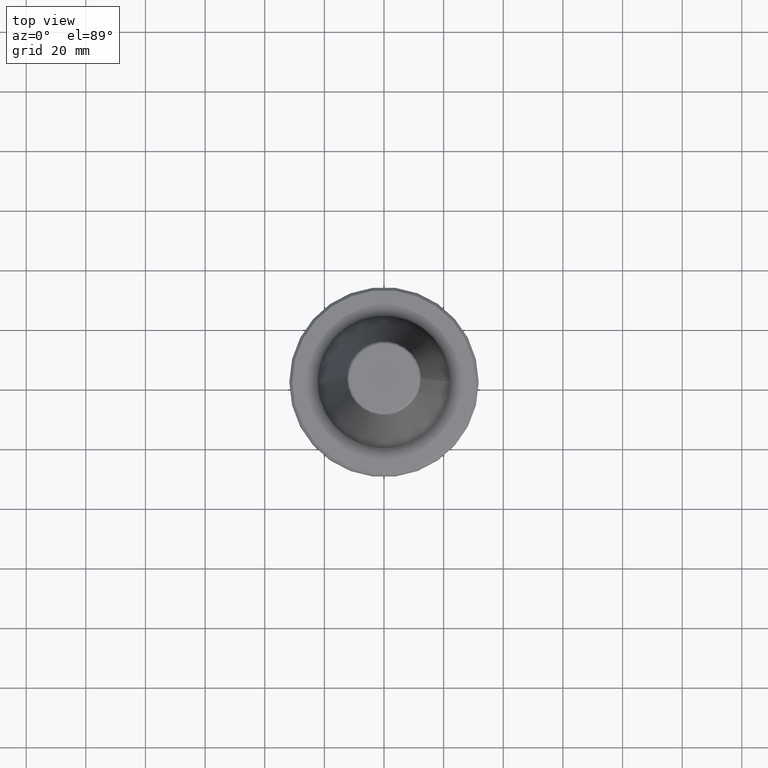
[diagram: clean part render]
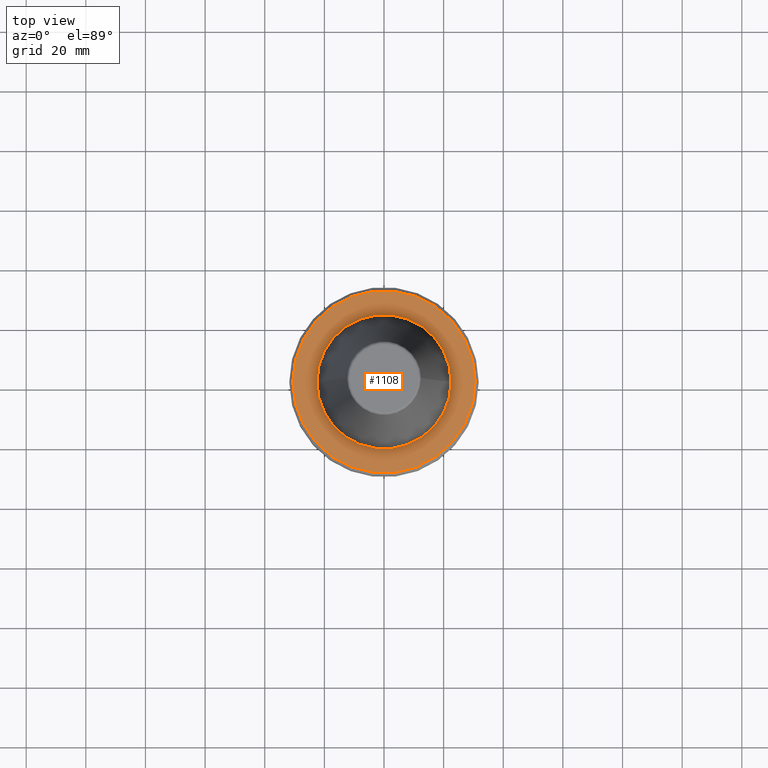
[diagram: same view with one face highlighted and labeled with its STEP entity id]
A machine part, top view. The second image highlights one B-rep face of the part: STEP entity #1108.
In plain terms, the highlighted planar face has unit normal (0, -0, 1).
Its self-contained STEP definition (entity closure, byte-faithful):
#16 = DIRECTION ( 'NONE',  ( 1.000000000000000000, 0.0000000000000000000, 0.0000000000000000000 ) ) ;
#18 = DIRECTION ( 'NONE',  ( 1.000000000000000000, 0.0000000000000000000, 0.0000000000000000000 ) ) ;
#67 = AXIS2_PLACEMENT_3D ( 'NONE', #457, #248, #242 ) ;
#108 = AXIS2_PLACEMENT_3D ( 'NONE', #875, #1064, #974 ) ;
#123 = CARTESIAN_POINT ( 'NONE',  ( 30.58431457505076200, 0.0000000000000000000, -3.199999999999994400 ) ) ;
#182 = CARTESIAN_POINT ( 'NONE',  ( 0.0000000000000000000, 0.0000000000000000000, -3.199999999999994400 ) ) ;
#193 = EDGE_LOOP ( 'NONE', ( #276, #1001 ) ) ;
#197 = FACE_BOUND ( 'NONE', #1008, .T. ) ;
#238 = VERTEX_POINT ( 'NONE', #1037 ) ;
#242 = DIRECTION ( 'NONE',  ( 1.000000000000000000, 0.0000000000000000000, 0.0000000000000000000 ) ) ;
#248 = DIRECTION ( 'NONE',  ( -0.0000000000000000000, -0.0000000000000000000, 1.000000000000000000 ) ) ;
#271 = CIRCLE ( 'NONE', #738, 30.58431457505076200 ) ;
#276 = ORIENTED_EDGE ( 'NONE', *, *, #1069, .T. ) ;
#292 = DIRECTION ( 'NONE',  ( 1.000000000000000000, 0.0000000000000000000, 0.0000000000000000000 ) ) ;
#293 = EDGE_CURVE ( 'NONE', #478, #321, #1135, .T. ) ;
#321 = VERTEX_POINT ( 'NONE', #123 ) ;
#410 = DIRECTION ( 'NONE',  ( -0.0000000000000000000, -0.0000000000000000000, 1.000000000000000000 ) ) ;
#425 = VERTEX_POINT ( 'NONE', #1027 ) ;
#457 = CARTESIAN_POINT ( 'NONE',  ( 0.0000000000000000000, 0.0000000000000000000, -3.199999999999994400 ) ) ;
#474 = CIRCLE ( 'NONE', #67, 22.50000000000000000 ) ;
#478 = VERTEX_POINT ( 'NONE', #669 ) ;
#623 = DIRECTION ( 'NONE',  ( -0.0000000000000000000, -0.0000000000000000000, 1.000000000000000000 ) ) ;
#669 = CARTESIAN_POINT ( 'NONE',  ( -30.58431457505076200, 3.762817415969875600E-015, -3.199999999999994400 ) ) ;
#728 = ORIENTED_EDGE ( 'NONE', *, *, #1258, .F. ) ;
#738 = AXIS2_PLACEMENT_3D ( 'NONE', #992, #410, #16 ) ;
#768 = FACE_OUTER_BOUND ( 'NONE', #193, .T. ) ;
#871 = CIRCLE ( 'NONE', #1192, 22.50000000000000000 ) ;
#875 = CARTESIAN_POINT ( 'NONE',  ( 0.0000000000000000000, 0.0000000000000000000, -3.200000000000000200 ) ) ;
#884 = DIRECTION ( 'NONE',  ( -0.0000000000000000000, -0.0000000000000000000, 1.000000000000000000 ) ) ;
#920 = ORIENTED_EDGE ( 'NONE', *, *, #1114, .F. ) ;
#974 = DIRECTION ( 'NONE',  ( 1.000000000000000000, 0.0000000000000000000, 0.0000000000000000000 ) ) ;
#992 = CARTESIAN_POINT ( 'NONE',  ( 0.0000000000000000000, 0.0000000000000000000, -3.199999999999994400 ) ) ;
#1001 = ORIENTED_EDGE ( 'NONE', *, *, #293, .T. ) ;
#1008 = EDGE_LOOP ( 'NONE', ( #728, #920 ) ) ;
#1027 = CARTESIAN_POINT ( 'NONE',  ( -22.50000000000000000, 2.755455298081544800E-015, -3.199999999999996600 ) ) ;
#1037 = CARTESIAN_POINT ( 'NONE',  ( 22.50000000000000000, 0.0000000000000000000, -3.199999999999996600 ) ) ;
#1064 = DIRECTION ( 'NONE',  ( 0.0000000000000000000, -0.0000000000000000000, 1.000000000000000000 ) ) ;
#1069 = EDGE_CURVE ( 'NONE', #321, #478, #271, .T. ) ;
#1087 = PLANE ( 'NONE',  #108 ) ;
#1104 = CARTESIAN_POINT ( 'NONE',  ( 0.0000000000000000000, 0.0000000000000000000, -3.199999999999994400 ) ) ;
#1108 = ADVANCED_FACE ( 'NONE', ( #768, #197 ), #1087, .T. ) ;
#1114 = EDGE_CURVE ( 'NONE', #425, #238, #474, .T. ) ;
#1135 = CIRCLE ( 'NONE', #1241, 30.58431457505076200 ) ;
#1192 = AXIS2_PLACEMENT_3D ( 'NONE', #182, #884, #292 ) ;
#1241 = AXIS2_PLACEMENT_3D ( 'NONE', #1104, #623, #18 ) ;
#1258 = EDGE_CURVE ( 'NONE', #238, #425, #871, .T. ) ;